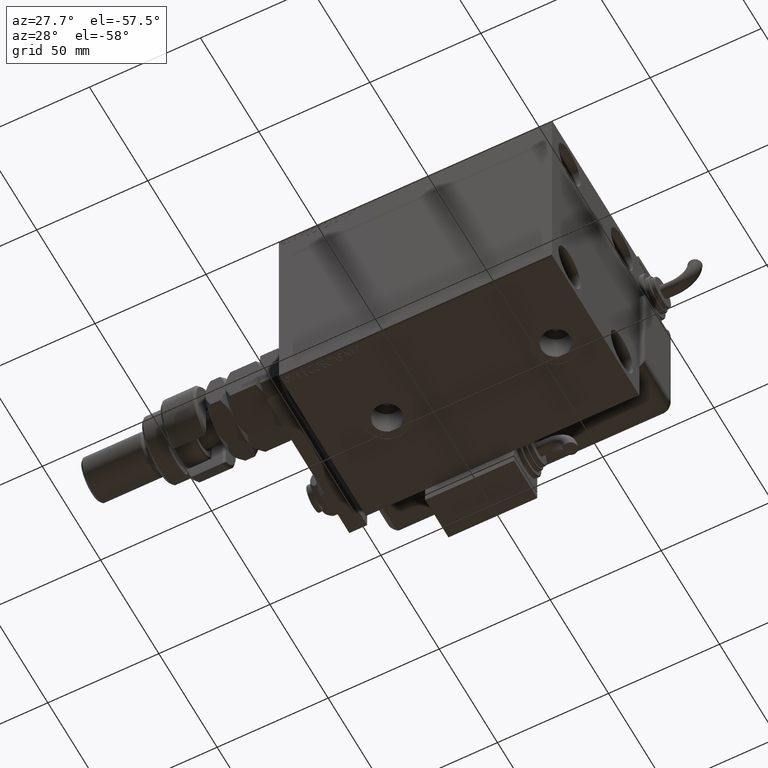
[diagram: clean part render]
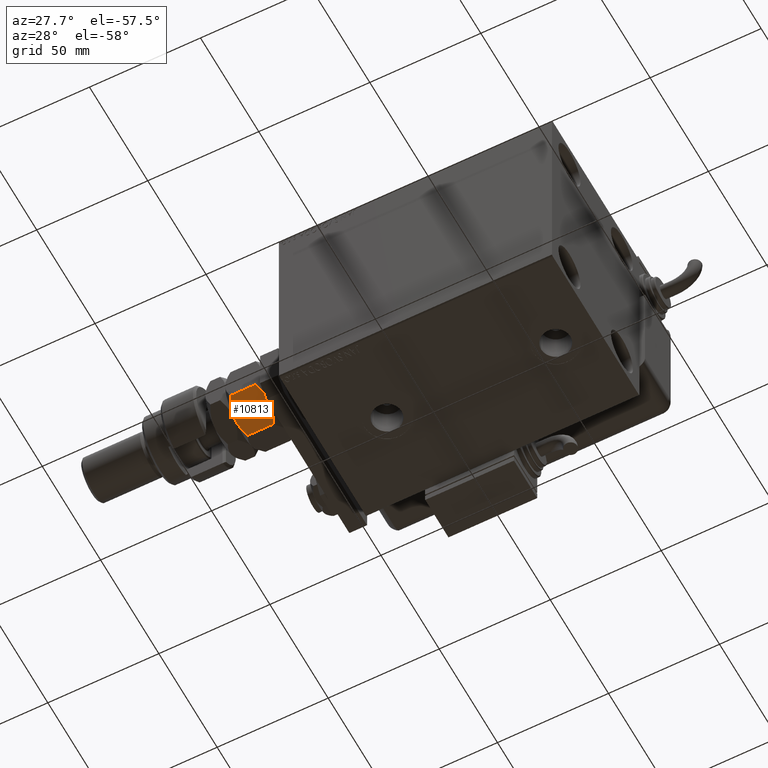
[diagram: same view with one face highlighted and labeled with its STEP entity id]
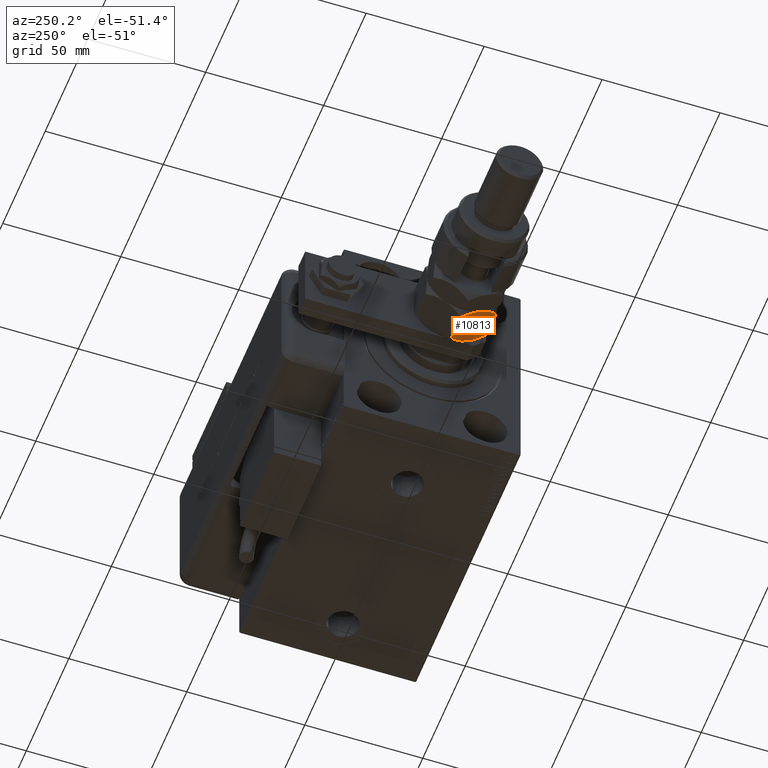
[diagram: same view with one face highlighted and labeled with its STEP entity id]
A machine part, auxiliary view. The second image highlights one B-rep face of the part: STEP entity #10813.
A second angle (auxiliary view) of the same face is appended — the face is thin or edge-on in the first view.
In plain terms, the highlighted planar face has unit normal (0, 0.5, 0.866).
Its self-contained STEP definition (entity closure, byte-faithful):
#430 = EDGE_CURVE ( 'NONE', #36156, #4754, #10998, .T. ) ;
#2164 = CARTESIAN_POINT ( 'NONE',  ( -8.804550678576912759, -12.23719837131869248, -4.878909776184767981E-16 ) ) ;
#2300 = CARTESIAN_POINT ( 'NONE',  ( -4.247772349543487813, -14.86805556622358893, 0.4475714085130264031 ) ) ;
#4088 = B_SPLINE_CURVE_WITH_KNOTS ( 'NONE', 3,
 ( #40953, #45832, #35445, #50346, #54231, #55198 ),
 .UNSPECIFIED., .F., .F.,
 ( 4, 2, 4 ),
 ( 0.008977392552884447263, 0.01343452311421656359, 0.01789165367554867991 ),
 .UNSPECIFIED. ) ;
#4754 = VERTEX_POINT ( 'NONE', #17444 ) ;
#5261 = CARTESIAN_POINT ( 'NONE',  ( -14.99999999999999645, -8.660254037844389075, 13.67949192431124139 ) ) ;
#6842 = CARTESIAN_POINT ( 'NONE',  ( -7.500000000000000000, -12.99038105676658006, 0.000000000000000000 ) ) ;
#7760 = EDGE_CURVE ( 'NONE', #15355, #31033, #4088, .T. ) ;
#8429 = ORIENTED_EDGE ( 'NONE', *, *, #7760, .F. ) ;
#9953 = CARTESIAN_POINT ( 'NONE',  ( -14.99999999999999645, -8.660254037844389075, 16.00000000000000000 ) ) ;
#10813 = ADVANCED_FACE ( 'NONE', ( #45213 ), #19645, .F. ) ;
#10998 = B_SPLINE_CURVE_WITH_KNOTS ( 'NONE', 3,
 ( #12006, #16848, #30755, #2300, #41105, #22011, #51764, #6842 ),
 .UNSPECIFIED., .F., .F.,
 ( 4, 2, 2, 4 ),
 ( 2.544309033648719118E-07, 0.004488823491893905240, 0.006733108022389175384, 0.008977392552884445528 ),
 .UNSPECIFIED. ) ;
#12006 = CARTESIAN_POINT ( 'NONE',  ( -2.796947266322166691E-15, -17.32050807568877104, 2.320508075688761718 ) ) ;
#13029 = ORIENTED_EDGE ( 'NONE', *, *, #59431, .T. ) ;
#13091 = VERTEX_POINT ( 'NONE', #18692 ) ;
#13745 = VERTEX_POINT ( 'NONE', #63801 ) ;
#14315 = CARTESIAN_POINT ( 'NONE',  ( -13.82389157469335750, -9.339280553791368789, 14.35851844025821933 ) ) ;
#15284 = CARTESIAN_POINT ( 'NONE',  ( -10.11832554202262102, -11.47869010025374692, 15.71619733805371411 ) ) ;
#15355 = VERTEX_POINT ( 'NONE', #40920 ) ;
#16848 = CARTESIAN_POINT ( 'NONE',  ( -1.176108425306644722, -16.64148155974179488, 1.641481559741788665 ) ) ;
#17444 = CARTESIAN_POINT ( 'NONE',  ( -7.500000000000000000, -12.99038105676658006, 0.000000000000000000 ) ) ;
#18405 = CARTESIAN_POINT ( 'NONE',  ( -2.796947266322166691E-15, -17.32050807568877104, 2.320508075688761718 ) ) ;
#18692 = CARTESIAN_POINT ( 'NONE',  ( -14.99999999999999645, -8.660254037844389075, 2.320508075688762606 ) ) ;
#19645 = PLANE ( 'NONE',  #60729 ) ;
#20013 = DIRECTION ( 'NONE',  ( -0.000000000000000000, -0.000000000000000000, -1.000000000000000000 ) ) ;
#20135 = ORIENTED_EDGE ( 'NONE', *, *, #47535, .F. ) ;
#22011 = CARTESIAN_POINT ( 'NONE',  ( -6.176419610670697224, -13.75455055083996214, 0.05953537397470286957 ) ) ;
#22873 = EDGE_LOOP ( 'NONE', ( #61122, #26047, #8429, #20135, #13029, #39973 ) ) ;
#24495 = DIRECTION ( 'NONE',  ( 0.5000000000000000000, 0.8660254037844387076, -0.000000000000000000 ) ) ;
#24855 = CARTESIAN_POINT ( 'NONE',  ( -14.99999999999999645, -8.660254037844389075, 16.00000000000000000 ) ) ;
#26047 = ORIENTED_EDGE ( 'NONE', *, *, #37092, .F. ) ;
#30139 = CARTESIAN_POINT ( 'NONE',  ( -7.500000000000001776, -12.99038105676658361, 16.00000000000000000 ) ) ;
#30755 = CARTESIAN_POINT ( 'NONE',  ( -2.378834511187505996, -15.94708733029708725, 1.064486067744005560 ) ) ;
#30935 = CARTESIAN_POINT ( 'NONE',  ( -13.82525345580783060, -9.338494271363318333, 1.642267842169780279 ) ) ;
#30972 = LINE ( 'NONE', #50717, #40870 ) ;
#31033 = VERTEX_POINT ( 'NONE', #41564 ) ;
#31612 = DIRECTION ( 'NONE',  ( -0.000000000000000000, -0.000000000000000000, -1.000000000000000000 ) ) ;
#34985 = CARTESIAN_POINT ( 'NONE',  ( -8.823580389329300999, -12.22621156269320331, 15.94046462602529957 ) ) ;
#35445 = CARTESIAN_POINT ( 'NONE',  ( -4.913081180497412603, -14.48393933357810504, 15.76967007806078946 ) ) ;
#35476 = VECTOR ( 'NONE', #20013, 1000.000000000000000 ) ;
#36156 = VERTEX_POINT ( 'NONE', #18405 ) ;
#36788 = B_SPLINE_CURVE_WITH_KNOTS ( 'NONE', 3,
 ( #5261, #14315, #39859, #59591, #15284, #34985, #54735, #30139 ),
 .UNSPECIFIED., .F., .F.,
 ( 4, 2, 2, 4 ),
 ( 2.544309033641602453E-07, 0.004488823491893906108, 0.006733108022389176252, 0.008977392552884447263 ),
 .UNSPECIFIED. ) ;
#37092 = EDGE_CURVE ( 'NONE', #31033, #36156, #30972, .T. ) ;
#39701 = DIRECTION ( 'NONE',  ( -0.8660254037844385966, 0.4999999999999999445, 0.000000000000000000 ) ) ;
#39859 = CARTESIAN_POINT ( 'NONE',  ( -12.62116548881249223, -10.03367478323606221, 14.93551393225599533 ) ) ;
#39973 = ORIENTED_EDGE ( 'NONE', *, *, #52853, .F. ) ;
#40331 = CARTESIAN_POINT ( 'NONE',  ( -12.61607045183964715, -10.03661640420386902, 1.060479031370877845 ) ) ;
#40870 = VECTOR ( 'NONE', #31612, 1000.000000000000000 ) ;
#40920 = CARTESIAN_POINT ( 'NONE',  ( -7.500000000000001776, -12.99038105676658361, 16.00000000000000000 ) ) ;
#40953 = CARTESIAN_POINT ( 'NONE',  ( -7.500000000000001776, -12.99038105676658361, 16.00000000000000000 ) ) ;
#41105 = CARTESIAN_POINT ( 'NONE',  ( -4.881674457977378090, -14.50207201327941320, 0.2838026619462943323 ) ) ;
#41564 = CARTESIAN_POINT ( 'NONE',  ( -3.416099238086855886E-15, -17.32050807568877104, 13.67949192431124317 ) ) ;
#45213 = FACE_OUTER_BOUND ( 'NONE', #22873, .T. ) ;
#45832 = CARTESIAN_POINT ( 'NONE',  ( -6.195449321423087241, -13.74356374221446586, 16.00000000000001066 ) ) ;
#47535 = EDGE_CURVE ( 'NONE', #13745, #15355, #36788, .T. ) ;
#50346 = CARTESIAN_POINT ( 'NONE',  ( -2.383929548160354628, -15.94414570932928576, 14.93952096862912526 ) ) ;
#50717 = CARTESIAN_POINT ( 'NONE',  ( -3.035766082959412415E-15, -17.32050807568877104, 16.00000000000000000 ) ) ;
#50851 = B_SPLINE_CURVE_WITH_KNOTS ( 'NONE', 3,
 ( #61020, #2164, #56494, #40331, #30935, #60709 ),
 .UNSPECIFIED., .F., .F.,
 ( 4, 2, 4 ),
 ( 0.008977392552884445528, 0.01343452311421656012, 0.01789165367554867297 ),
 .UNSPECIFIED. ) ;
#51764 = CARTESIAN_POINT ( 'NONE',  ( -6.843123817691746602, -13.36962869744650284, -3.760826285809093999E-16 ) ) ;
#52853 = EDGE_CURVE ( 'NONE', #4754, #13091, #50851, .T. ) ;
#54231 = CARTESIAN_POINT ( 'NONE',  ( -1.174746544192163844, -16.64226784216984711, 14.35773215783022572 ) ) ;
#54735 = CARTESIAN_POINT ( 'NONE',  ( -8.156876182308250733, -12.61113341608665905, 16.00000000000000355 ) ) ;
#55198 = CARTESIAN_POINT ( 'NONE',  ( -3.416099238086855886E-15, -17.32050807568877104, 13.67949192431124317 ) ) ;
#55589 = LINE ( 'NONE', #24855, #35476 ) ;
#56494 = CARTESIAN_POINT ( 'NONE',  ( -10.08691881950258740, -11.49682277995505331, 0.2303299219392165864 ) ) ;
#59431 = EDGE_CURVE ( 'NONE', #13745, #13091, #55589, .T. ) ;
#59591 = CARTESIAN_POINT ( 'NONE',  ( -10.75222765045651308, -11.11270654730956409, 15.55242859148697576 ) ) ;
#60709 = CARTESIAN_POINT ( 'NONE',  ( -14.99999999999999645, -8.660254037844389075, 2.320508075688762606 ) ) ;
#60729 = AXIS2_PLACEMENT_3D ( 'NONE', #9953, #24495, #39701 ) ;
#61020 = CARTESIAN_POINT ( 'NONE',  ( -7.500000000000000000, -12.99038105676658006, 0.000000000000000000 ) ) ;
#61122 = ORIENTED_EDGE ( 'NONE', *, *, #430, .F. ) ;
#63801 = CARTESIAN_POINT ( 'NONE',  ( -14.99999999999999645, -8.660254037844389075, 13.67949192431124139 ) ) ;